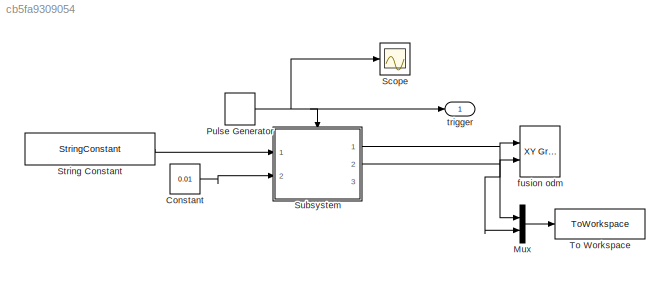
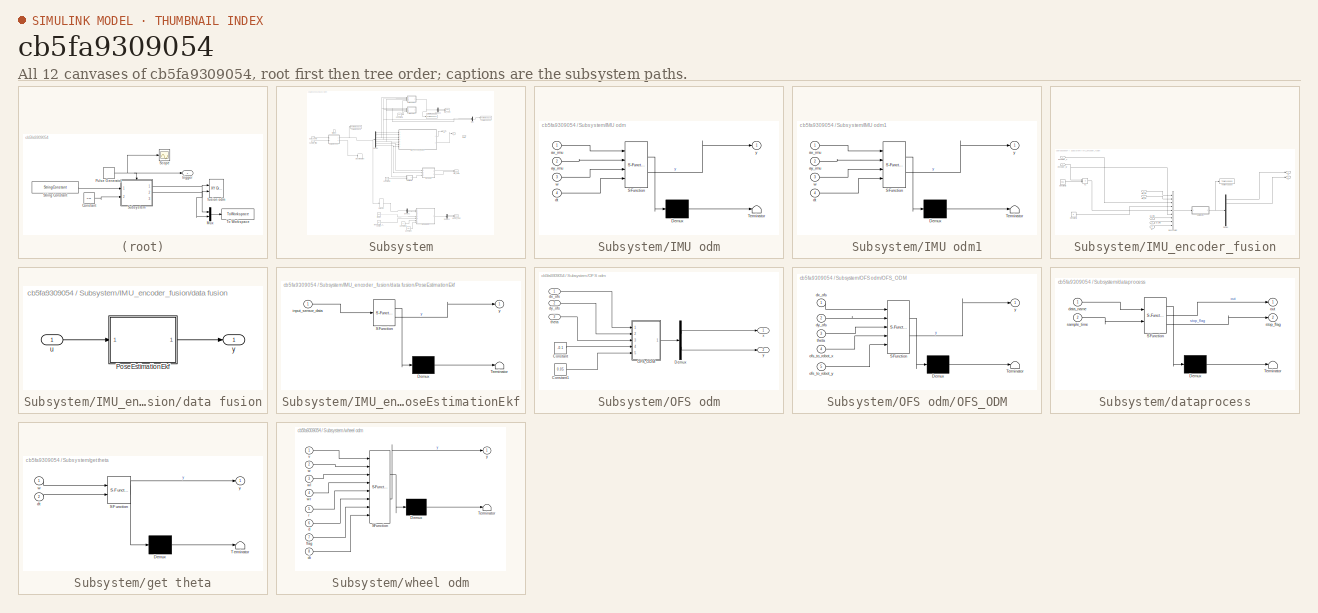
[diagram: thumbnail index - all 12 canvases of the model, root first then tree order]
MODEL slx_cb5fa9309054
KIND model
CONFIG AbsTol = auto
CONFIG EnableMultiTasking = off
CONFIG FixedStep = auto
CONFIG MaxStep = auto
CONFIG MinStep = auto
CONFIG RelTol = 1e-3
CONFIG SampleTimeConstraint = Unconstrained
CONFIG SolverName = VariableStepAuto
CONFIG StartTime = 0.0
CONFIG StopTime = 20.0
WORKSPACE source: mxarray member
WORKSPACE sample_time = 0.01
BLOCK [Constant] Constant
  Value = 0.01
BLOCK [Mux] Mux
  DisplayOption = bar
  Inputs = 2
  Ports = [2, 1]
BLOCK [DiscretePulseGenerator] Pulse Generator
  Period = 0.001
  Ports = [0, 1]
  PulseType = Time based
  PulseWidth = 50
BLOCK [Scope] Scope
  Floating = off
  NumInputPorts = 1
  Ports = [1]
  ScopeSpecificationString = Simulink.scopes.TimeScopeBlockCfg('CurrentConfiguration', extmgr.ConfigurationSet(extmgr.Configuration('Core','General UI',true),extmgr.Configuration('Core','Source UI',true),extmgr.Configuration('Sources','WiredSimulink',true),extmgr.Configuration('Visuals','Time Domain',true,'SerializedDisplays',{struct('MinYLimReal','0.0023','MaxYLimReal','0.00326','YLabelReal','','MinYLimMag','0.0023','MaxYLim...<+1379ch>
BLOCK [StringConstant] String Constant
  String = "debug_output_2023-09-26_07:46:42.dat"
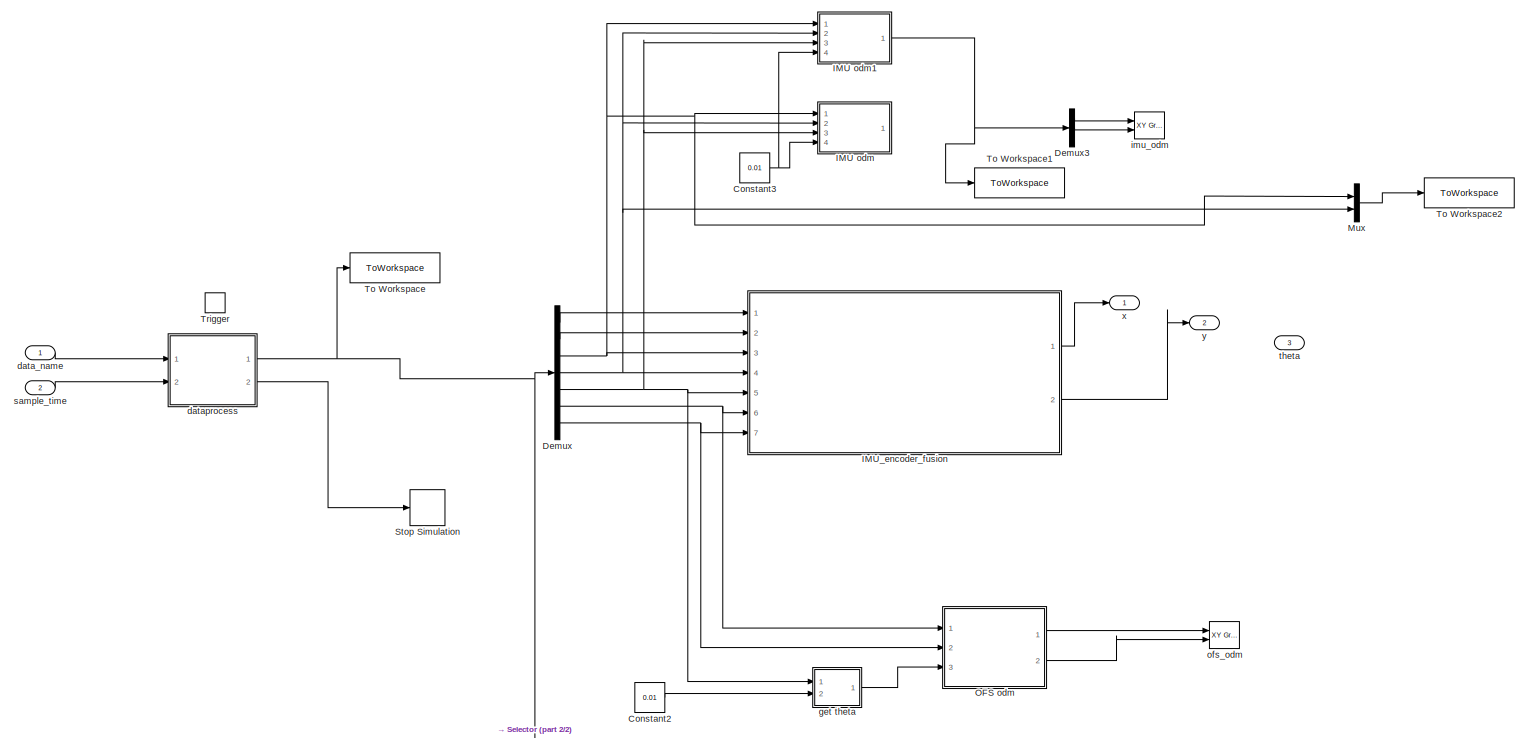
[diagram: Subsystem - part 1/2, full width, middle band]
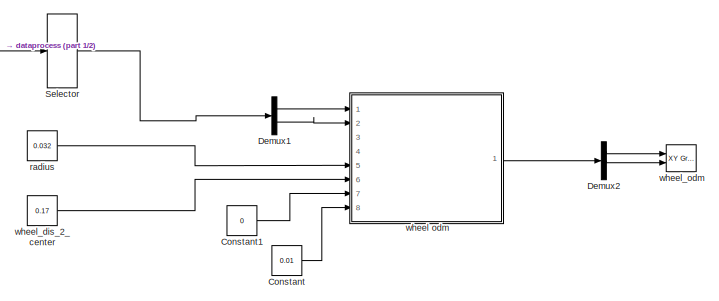
[diagram: Subsystem - part 2/2, bottom center region]
BLOCK [SubSystem] Subsystem
  Ports = [2, 3, 0, 1]
  RequestExecContextInheritance = off
BLOCK [Constant] Subsystem/Constant
  Value = 0.01
BLOCK [Constant] Subsystem/Constant1
  Value = 0
BLOCK [Constant] Subsystem/Constant2
  Value = 0.01
BLOCK [Constant] Subsystem/Constant3
  Value = 0.01
BLOCK [Demux] Subsystem/Demux
  Outputs = 7
  Ports = [1, 7]
BLOCK [Demux] Subsystem/Demux1
  Outputs = 2
  Ports = [1, 2]
BLOCK [Demux] Subsystem/Demux2
  Outputs = 3
  Ports = [1, 3]
BLOCK [Demux] Subsystem/Demux3
  Outputs = 3
  Ports = [1, 3]
BLOCK [SubSystem] Subsystem/IMU odm
  ErrorFcn = Stateflow.Translate.translate
  PermitHierarchicalResolution = ExplicitOnly
  Ports = [4, 1]
  RequestExecContextInheritance = off
  SFBlockType = MATLAB Function
  TreatAsAtomicUnit = on
BLOCK [Demux] Subsystem/IMU odm/ Demux 
  Outputs = 1
  Ports = [1, 1]
BLOCK [S-Function] Subsystem/IMU odm/ SFunction 
  EnableBusSupport = on
  FunctionName = sf_sfun
  PortCounts = [4 2]
  Ports = [4, 2]
  SFcnIsStateOwnerBlock = off
  SFunctionDeploymentMode = off
  Tag = Stateflow S-Function 5
BLOCK [Terminator] Subsystem/IMU odm/ Terminator 
BLOCK [Inport] Subsystem/IMU odm/ax_imu
BLOCK [Inport] Subsystem/IMU odm/ay_imu
  Port = 2
BLOCK [Inport] Subsystem/IMU odm/dt
  Port = 4
BLOCK [Inport] Subsystem/IMU odm/w
  Port = 3
BLOCK [Outport] Subsystem/IMU odm/y
BLOCK [SubSystem] Subsystem/IMU odm1
  ErrorFcn = Stateflow.Translate.translate
  PermitHierarchicalResolution = ExplicitOnly
  Ports = [4, 1]
  RequestExecContextInheritance = off
  SFBlockType = MATLAB Function
  TreatAsAtomicUnit = on
BLOCK [Demux] Subsystem/IMU odm1/ Demux 
  Outputs = 1
  Ports = [1, 1]
BLOCK [S-Function] Subsystem/IMU odm1/ SFunction 
  EnableBusSupport = on
  FunctionName = sf_sfun
  PortCounts = [4 2]
  Ports = [4, 2]
  SFcnIsStateOwnerBlock = off
  SFunctionDeploymentMode = off
  Tag = Stateflow S-Function 7
BLOCK [Terminator] Subsystem/IMU odm1/ Terminator 
BLOCK [Inport] Subsystem/IMU odm1/ax_imu
BLOCK [Inport] Subsystem/IMU odm1/ay_imu
  Port = 2
BLOCK [Inport] Subsystem/IMU odm1/dt
  Port = 4
BLOCK [Inport] Subsystem/IMU odm1/w
  Port = 3
BLOCK [Outport] Subsystem/IMU odm1/y
BLOCK [SubSystem] Subsystem/IMU_encoder_fusion
  Ports = [7, 2]
  RequestExecContextInheritance = off
BLOCK [BusCreator] Subsystem/IMU_encoder_fusion/Bus Creator
  DisplayOption = bar
  InheritFromInputs = on
  Inputs = 9
  Ports = [9, 1]
BLOCK [Constant] Subsystem/IMU_encoder_fusion/Constant1
  Value = 0
BLOCK [Constant] Subsystem/IMU_encoder_fusion/Constant2
  Value = 0.01
BLOCK [Demux] Subsystem/IMU_encoder_fusion/Demux
  Outputs = 6
  Ports = [1, 6]
BLOCK [ToWorkspace] Subsystem/IMU_encoder_fusion/To Workspace
  FixptAsFi = on
  MaxDataPoints = inf
  Ports = [1]
  SampleTime = -1
  Save2DSignal = 2-D array (concatenate along first dimension)
  VariableName = data_fusion_pos
BLOCK [Inport] Subsystem/IMU_encoder_fusion/ax_imu
  Port = 3
BLOCK [Inport] Subsystem/IMU_encoder_fusion/ay_imu
  Port = 4
BLOCK [SubSystem] Subsystem/IMU_encoder_fusion/data fusion
  Ports = [1, 1]
  RequestExecContextInheritance = off
  TreatAsAtomicUnit = on
BLOCK [SubSystem] Subsystem/IMU_encoder_fusion/data fusion/PoseEstimationEkf
  ErrorFcn = Stateflow.Translate.translate
  PermitHierarchicalResolution = ExplicitOnly
  Ports = [1, 1]
  RequestExecContextInheritance = off
  SFBlockType = MATLAB Function
  TreatAsAtomicUnit = on
BLOCK [Demux] Subsystem/IMU_encoder_fusion/data fusion/PoseEstimationEkf/ Demux 
  Outputs = 1
  Ports = [1, 1]
BLOCK [S-Function] Subsystem/IMU_encoder_fusion/data fusion/PoseEstimationEkf/ SFunction 
  EnableBusSupport = on
  FunctionName = sf_sfun
  PortCounts = [1 2]
  Ports = [1, 2]
  SFcnIsStateOwnerBlock = off
  SFunctionDeploymentMode = off
  Tag = Stateflow S-Function 3
BLOCK [Terminator] Subsystem/IMU_encoder_fusion/data fusion/PoseEstimationEkf/ Terminator 
BLOCK [Inport] Subsystem/IMU_encoder_fusion/data fusion/PoseEstimationEkf/input_sensor_data
BLOCK [Outport] Subsystem/IMU_encoder_fusion/data fusion/PoseEstimationEkf/y
BLOCK [Inport] Subsystem/IMU_encoder_fusion/data fusion/u
BLOCK [Outport] Subsystem/IMU_encoder_fusion/data fusion/y
BLOCK [Inport] Subsystem/IMU_encoder_fusion/encoder_v
BLOCK [Inport] Subsystem/IMU_encoder_fusion/encoder_w
  Port = 2
BLOCK [Inport] Subsystem/IMU_encoder_fusion/ofs_dx
  Port = 6
BLOCK [Inport] Subsystem/IMU_encoder_fusion/ofs_dy
  Port = 7
BLOCK [Product] Subsystem/IMU_encoder_fusion/v1
  Ports = [2, 1]
BLOCK [Inport] Subsystem/IMU_encoder_fusion/w
  Port = 5
BLOCK [Outport] Subsystem/IMU_encoder_fusion/x
BLOCK [Outport] Subsystem/IMU_encoder_fusion/y
  Port = 2
BLOCK [Mux] Subsystem/Mux
  DisplayOption = bar
  Inputs = 2
  Ports = [2, 1]
BLOCK [SubSystem] Subsystem/OFS odm
  Ports = [3, 2]
  RequestExecContextInheritance = off
BLOCK [Constant] Subsystem/OFS odm/Constant
  Value = -0.1
BLOCK [Constant] Subsystem/OFS odm/Constant1
  Value = 0.05
BLOCK [Demux] Subsystem/OFS odm/Demux
  Outputs = 2
  Ports = [1, 2]
BLOCK [SubSystem] Subsystem/OFS odm/OFS_ODM
  ErrorFcn = Stateflow.Translate.translate
  PermitHierarchicalResolution = ExplicitOnly
  Ports = [5, 1]
  RequestExecContextInheritance = off
  SFBlockType = MATLAB Function
  TreatAsAtomicUnit = on
BLOCK [Demux] Subsystem/OFS odm/OFS_ODM/ Demux 
  Outputs = 1
  Ports = [1, 1]
BLOCK [S-Function] Subsystem/OFS odm/OFS_ODM/ SFunction 
  EnableBusSupport = on
  FunctionName = sf_sfun
  PortCounts = [5 2]
  Ports = [5, 2]
  SFcnIsStateOwnerBlock = off
  SFunctionDeploymentMode = off
  Tag = Stateflow S-Function 6
BLOCK [Terminator] Subsystem/OFS odm/OFS_ODM/ Terminator 
BLOCK [Inport] Subsystem/OFS odm/OFS_ODM/dx_ofs
BLOCK [Inport] Subsystem/OFS odm/OFS_ODM/dy_ofs
  Port = 2
BLOCK [Inport] Subsystem/OFS odm/OFS_ODM/ofs_to_robot_x
  Port = 4
BLOCK [Inport] Subsystem/OFS odm/OFS_ODM/ofs_to_robot_y
  Port = 5
BLOCK [Inport] Subsystem/OFS odm/OFS_ODM/theta
  Port = 3
BLOCK [Outport] Subsystem/OFS odm/OFS_ODM/y
BLOCK [Inport] Subsystem/OFS odm/dx_ofs
BLOCK [Inport] Subsystem/OFS odm/dy_ofs
  Port = 2
BLOCK [Inport] Subsystem/OFS odm/theta
  Port = 3
BLOCK [Outport] Subsystem/OFS odm/x
BLOCK [Outport] Subsystem/OFS odm/y
  Port = 2
BLOCK [Selector] Subsystem/Selector
  IndexOptions = Index vector (dialog)
  Indices = [1 2]
  InputPortWidth = 7
  OutputSizes = 1
  Ports = [1, 1]
BLOCK [Stop] Subsystem/Stop Simulation
BLOCK [ToWorkspace] Subsystem/To Workspace
  FixptAsFi = on
  MaxDataPoints = inf
  Ports = [1]
  SampleTime = -1
  Save2DSignal = 2-D array (concatenate along first dimension)
  VariableName = sensordata
BLOCK [ToWorkspace] Subsystem/To Workspace1
  FixptAsFi = on
  MaxDataPoints = inf
  Ports = [1]
  SampleTime = -1
  Save2DSignal = 2-D array (concatenate along first dimension)
  VariableName = imu_odm
BLOCK [ToWorkspace] Subsystem/To Workspace2
  FixptAsFi = on
  MaxDataPoints = inf
  Ports = [1]
  SampleTime = -1
  Save2DSignal = 2-D array (concatenate along first dimension)
  VariableName = w
BLOCK [TriggerPort] Subsystem/Trigger
  PortDimensions = 1
  Ports = []
  StatesWhenEnabling = held
  VariantControl = Variant
BLOCK [Inport] Subsystem/data_name
BLOCK [SubSystem] Subsystem/dataprocess
  ErrorFcn = Stateflow.Translate.translate
  PermitHierarchicalResolution = ExplicitOnly
  Ports = [2, 2]
  RequestExecContextInheritance = off
  SFBlockType = MATLAB Function
  TreatAsAtomicUnit = on
BLOCK [Demux] Subsystem/dataprocess/ Demux 
  Outputs = 1
  Ports = [1, 1]
BLOCK [S-Function] Subsystem/dataprocess/ SFunction 
  EnableBusSupport = on
  FunctionName = sf_sfun
  PortCounts = [2 3]
  Ports = [2, 3]
  SFcnIsStateOwnerBlock = off
  SFunctionDeploymentMode = off
  Tag = Stateflow S-Function 2
BLOCK [Terminator] Subsystem/dataprocess/ Terminator 
BLOCK [Inport] Subsystem/dataprocess/data_name
BLOCK [Outport] Subsystem/dataprocess/out
BLOCK [Inport] Subsystem/dataprocess/sample_time
  Port = 2
BLOCK [Outport] Subsystem/dataprocess/stop_flag
  Port = 2
BLOCK [SubSystem] Subsystem/get theta
  ErrorFcn = Stateflow.Translate.translate
  PermitHierarchicalResolution = ExplicitOnly
  Ports = [2, 1]
  RequestExecContextInheritance = off
  SFBlockType = MATLAB Function
  TreatAsAtomicUnit = on
BLOCK [Demux] Subsystem/get theta/ Demux 
  Outputs = 1
  Ports = [1, 1]
BLOCK [S-Function] Subsystem/get theta/ SFunction 
  EnableBusSupport = on
  FunctionName = sf_sfun
  PortCounts = [2 2]
  Ports = [2, 2]
  SFcnIsStateOwnerBlock = off
  SFunctionDeploymentMode = off
  Tag = Stateflow S-Function 4
BLOCK [Terminator] Subsystem/get theta/ Terminator 
BLOCK [Inport] Subsystem/get theta/dt
  Port = 2
BLOCK [Inport] Subsystem/get theta/w
BLOCK [Outport] Subsystem/get theta/y
BLOCK [Reference] Subsystem/imu_odm  REF=simulink/Sinks/XY Graph
  Ports = [2]
  SourceBlock = simulink/Sinks/XY Graph
  SourceProductBaseCode = SL
  SourceType = XY scope.
BLOCK [Reference] Subsystem/ofs_odm  REF=simulink/Sinks/XY Graph
  Ports = [2]
  SourceBlock = simulink/Sinks/XY Graph
  SourceProductBaseCode = SL
  SourceType = XY scope.
BLOCK [Constant] Subsystem/radius
  Value = 0.032
BLOCK [Inport] Subsystem/sample_time
  Port = 2
BLOCK [Outport] Subsystem/theta
  Port = 3
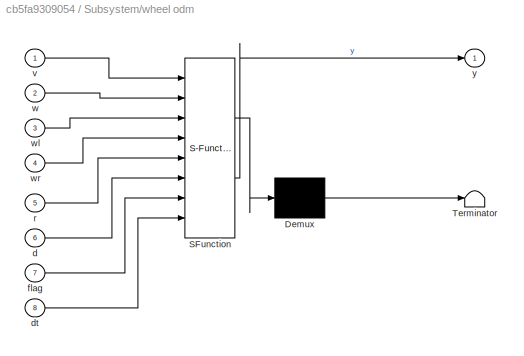
BLOCK [SubSystem] Subsystem/wheel odm
  ErrorFcn = Stateflow.Translate.translate
  PermitHierarchicalResolution = ExplicitOnly
  Ports = [8, 1]
  RequestExecContextInheritance = off
  SFBlockType = MATLAB Function
  TreatAsAtomicUnit = on
BLOCK [Demux] Subsystem/wheel odm/ Demux 
  Outputs = 1
  Ports = [1, 1]
BLOCK [S-Function] Subsystem/wheel odm/ SFunction 
  EnableBusSupport = on
  FunctionName = sf_sfun
  PortCounts = [8 2]
  Ports = [8, 2]
  SFcnIsStateOwnerBlock = off
  SFunctionDeploymentMode = off
  Tag = Stateflow S-Function 1
BLOCK [Terminator] Subsystem/wheel odm/ Terminator 
BLOCK [Inport] Subsystem/wheel odm/d
  Port = 6
BLOCK [Inport] Subsystem/wheel odm/dt
  Port = 8
BLOCK [Inport] Subsystem/wheel odm/flag
  Port = 7
BLOCK [Inport] Subsystem/wheel odm/r
  Port = 5
BLOCK [Inport] Subsystem/wheel odm/v
BLOCK [Inport] Subsystem/wheel odm/w
  Port = 2
BLOCK [Inport] Subsystem/wheel odm/wl
  Port = 3
BLOCK [Inport] Subsystem/wheel odm/wr
  Port = 4
BLOCK [Outport] Subsystem/wheel odm/y
BLOCK [Constant] Subsystem/wheel_dis_2_center
  Value = 0.17
BLOCK [Reference] Subsystem/wheel_odm  REF=simulink/Sinks/XY Graph
  Ports = [2]
  SourceBlock = simulink/Sinks/XY Graph
  SourceProductBaseCode = SL
  SourceType = XY scope.
BLOCK [Outport] Subsystem/x
BLOCK [Outport] Subsystem/y
  Port = 2
BLOCK [ToWorkspace] To Workspace
  FixptAsFi = on
  MaxDataPoints = inf
  Ports = [1]
  SampleTime = -1
  Save2DSignal = 2-D array (concatenate along first dimension)
  VariableName = pose
BLOCK [Reference] fusion odm  REF=simulink/Sinks/XY Graph
  Ports = [2]
  SourceBlock = simulink/Sinks/XY Graph
  SourceProductBaseCode = SL
  SourceType = XY scope.
BLOCK [Outport] trigger
LINE Constant:1 -> Subsystem:2
LINE Mux:1 -> To Workspace:1
NET Pulse Generator:1 -> Scope:1, Subsystem:trigger, trigger:1
LINE String Constant:1 -> Subsystem:1
LINE Subsystem/Constant1:1 -> Subsystem/wheel odm:7
LINE Subsystem/Constant2:1 -> Subsystem/get theta:2
NET Subsystem/Constant3:1 -> Subsystem/IMU odm1:4, Subsystem/IMU odm:4
LINE Subsystem/Constant:1 -> Subsystem/wheel odm:8
LINE Subsystem/Demux1:1 -> Subsystem/wheel odm:1
LINE Subsystem/Demux1:2 -> Subsystem/wheel odm:2
LINE Subsystem/Demux2:1 -> Subsystem/wheel_odm:1
LINE Subsystem/Demux2:2 -> Subsystem/wheel_odm:2
LINE Subsystem/Demux3:1 -> Subsystem/imu_odm:1
LINE Subsystem/Demux3:2 -> Subsystem/imu_odm:2
LINE Subsystem/Demux:1 -> Subsystem/IMU_encoder_fusion:1
LINE Subsystem/Demux:2 -> Subsystem/IMU_encoder_fusion:2
NET Subsystem/Demux:3 -> Subsystem/IMU odm1:1, Subsystem/IMU odm:1, Subsystem/IMU_encoder_fusion:3, Subsystem/Mux:1
NET Subsystem/Demux:4 -> Subsystem/IMU odm1:2, Subsystem/IMU odm:2, Subsystem/IMU_encoder_fusion:4, Subsystem/Mux:2
NET Subsystem/Demux:5 -> Subsystem/IMU odm1:3, Subsystem/IMU odm:3, Subsystem/IMU_encoder_fusion:5, Subsystem/get theta:1
NET Subsystem/Demux:6 -> Subsystem/IMU_encoder_fusion:6, Subsystem/OFS odm:1
NET Subsystem/Demux:7 -> Subsystem/IMU_encoder_fusion:7, Subsystem/OFS odm:2
NET Subsystem/IMU odm1:1 -> Subsystem/Demux3:1, Subsystem/To Workspace1:1
LINE Subsystem/IMU_encoder_fusion/Bus Creator:1 -> Subsystem/IMU_encoder_fusion/data fusion:1
LINE Subsystem/IMU_encoder_fusion/Constant1:1 -> Subsystem/IMU_encoder_fusion/Bus Creator:4
LINE Subsystem/IMU_encoder_fusion/Constant2:1 -> Subsystem/IMU_encoder_fusion/v1:2
LINE Subsystem/IMU_encoder_fusion/Demux:1 -> Subsystem/IMU_encoder_fusion/x:1
LINE Subsystem/IMU_encoder_fusion/Demux:2 -> Subsystem/IMU_encoder_fusion/y:1
LINE Subsystem/IMU_encoder_fusion/ax_imu:1 -> Subsystem/IMU_encoder_fusion/Bus Creator:7
LINE Subsystem/IMU_encoder_fusion/ay_imu:1 -> Subsystem/IMU_encoder_fusion/Bus Creator:8
LINE Subsystem/IMU_encoder_fusion/data fusion/PoseEstimationEkf:1 -> Subsystem/IMU_encoder_fusion/data fusion/y:1
LINE Subsystem/IMU_encoder_fusion/data fusion/u:1 -> Subsystem/IMU_encoder_fusion/data fusion/PoseEstimationEkf:1
NET Subsystem/IMU_encoder_fusion/data fusion:1 -> Subsystem/IMU_encoder_fusion/Demux:1, Subsystem/IMU_encoder_fusion/To Workspace:1
LINE Subsystem/IMU_encoder_fusion/encoder_v:1 -> Subsystem/IMU_encoder_fusion/Bus Creator:3
NET Subsystem/IMU_encoder_fusion/encoder_w:1 -> Subsystem/IMU_encoder_fusion/Bus Creator:6, Subsystem/IMU_encoder_fusion/v1:1
LINE Subsystem/IMU_encoder_fusion/ofs_dx:1 -> Subsystem/IMU_encoder_fusion/Bus Creator:1
LINE Subsystem/IMU_encoder_fusion/ofs_dy:1 -> Subsystem/IMU_encoder_fusion/Bus Creator:2
LINE Subsystem/IMU_encoder_fusion/v1:1 -> Subsystem/IMU_encoder_fusion/Bus Creator:5
LINE Subsystem/IMU_encoder_fusion/w:1 -> Subsystem/IMU_encoder_fusion/Bus Creator:9
LINE Subsystem/IMU_encoder_fusion:1 -> Subsystem/x:1
LINE Subsystem/IMU_encoder_fusion:2 -> Subsystem/y:1
LINE Subsystem/Mux:1 -> Subsystem/To Workspace2:1
LINE Subsystem/OFS odm/Constant1:1 -> Subsystem/OFS odm/OFS_ODM:5
LINE Subsystem/OFS odm/Constant:1 -> Subsystem/OFS odm/OFS_ODM:4
LINE Subsystem/OFS odm/Demux:1 -> Subsystem/OFS odm/x:1
LINE Subsystem/OFS odm/Demux:2 -> Subsystem/OFS odm/y:1
LINE Subsystem/OFS odm/OFS_ODM:1 -> Subsystem/OFS odm/Demux:1
LINE Subsystem/OFS odm/dx_ofs:1 -> Subsystem/OFS odm/OFS_ODM:1
LINE Subsystem/OFS odm/dy_ofs:1 -> Subsystem/OFS odm/OFS_ODM:2
LINE Subsystem/OFS odm/theta:1 -> Subsystem/OFS odm/OFS_ODM:3
LINE Subsystem/OFS odm:1 -> Subsystem/ofs_odm:1
LINE Subsystem/OFS odm:2 -> Subsystem/ofs_odm:2
LINE Subsystem/Selector:1 -> Subsystem/Demux1:1
LINE Subsystem/data_name:1 -> Subsystem/dataprocess:1
NET Subsystem/dataprocess:1 -> Subsystem/Demux:1, Subsystem/Selector:1, Subsystem/To Workspace:1
LINE Subsystem/dataprocess:2 -> Subsystem/Stop Simulation:1
LINE Subsystem/get theta:1 -> Subsystem/OFS odm:3
LINE Subsystem/radius:1 -> Subsystem/wheel odm:5
LINE Subsystem/sample_time:1 -> Subsystem/dataprocess:2
LINE Subsystem/wheel odm:1 -> Subsystem/Demux2:1
LINE Subsystem/wheel_dis_2_center:1 -> Subsystem/wheel odm:6
NET Subsystem:1 -> Mux:1, fusion odm:1
NET Subsystem:2 -> Mux:2, fusion odm:2
note: NET lines group one-source signal fan-out (src -> all destinations, sorted); 1:1 wires keep LINE
CHART Subsystem/wheel odm states=1 transitions=1
  STATE_LABEL 'eML_blk_kernel()'
  STATE_LABEL 'SCRIPT:\nfunction y = wheelodm( v,w,wl,wr,r,d,flag,dt)\npersistent pos last_pos;\nif isempty(pos)\n   pos=zeros(3,1);%x,y,theta \n   last_pos=pos;\nend\nif flag==0\n   %use v,w \n   vx=v*cos(pos(3));\n   vy=v*sin(pos(3));\n   dx=vx*dt;\n   dy=vy*dt;\n   dtheta=w*dt;\n   pos=pos+[dx;dy;dtheta];\n    \nelse\n    %use wl,wr\n    pos=zeros(3,1);%x,y,theta\n    \nend\ny = pos;\n'
CHART Subsystem/dataprocess states=1 transitions=1
  STATE_LABEL 'eML_blk_kernel()'
  STATE_LABEL 'SCRIPT:\nfunction [out,stop_flag]= realdata_read(data_name,sample_time)\ncoder.extrinsic(\'realdata_read_callback\');\nout=[0,0,0,0,0,0,0];\nstop_flag=0;\nout=realdata_read_callback(data_name,sample_time);\nif sum(out)==-7\n    stop_flag=1;\nend\n% persistent fid;\n% filepath="<userpath>/work/other/TFwork/code/mat/car_simulation/";\n% if isempty(fid)\n%     fid=fopen(filepath+data_name,\'r\');\n% end\n% starttim=0;...<+927ch>'
CHART Subsystem/IMU_encoder_fusion/data fusion/PoseEstimationEkf states=1 transitions=1
  STATE_LABEL 'eML_blk_kernel()'
  STATE_LABEL 'SCRIPT:\nfunction y = PoseEstimationEkf(input_sensor_data)\npersistent state_variable_current state_variable_last P Q counter vx_imu vy_imu vx_imu_last vy_imu_last;\nif isempty(state_variable_current)\n        state_variable_current=zeros(6,1);%[xt,yt,theta_t,vxt,vyt,wt,axt,ayt]\n        state_variable_last=zeros(6,1);\n        Q=diag([0.1, 0.1, 0.1,0.1, 0.1, 0.1]);\n        P=Q;\n        counter=0;\n     ...<+3608ch>'
CHART Subsystem/get theta states=1 transitions=1
  STATE_LABEL 'eML_blk_kernel()'
  STATE_LABEL 'SCRIPT:\nfunction y = fcn(w,dt)\npersistent theta last_w;\nif isempty(last_w)\n    theta=0;\n    last_w=0;\nend\ndtheta=(w+last_w)*0.5*dt;\ntheta=theta+dtheta;\nlast_w=w;\ny = theta;\n'
CHART Subsystem/IMU odm states=1 transitions=1
  STATE_LABEL 'eML_blk_kernel()'
  STATE_LABEL 'SCRIPT:\nfunction y = fcn(ax_imu,ay_imu,w,dt)\npersistent pos vx_last vy_last ax_last ay_last w_last;\nif isempty(pos)\n    pos=zeros(3,1);\n    vx_last=0;\n    vy_last=0;\n    ax_last=0;\n    ay_last=0;\n    w_last=0;\nend\n\ndtheta=(w+w_last)*0.5*dt;\nax=ax_imu*cos(pos(3)+dtheta)-ay_imu*sin(pos(3)+dtheta);\nddx=vx_last*dt+(ax+ax_last)*dt^2/4;\n\nay=ax_imu*sin(pos(3)+dtheta)+ay_imu*cos(pos(3)+dtheta);\nddy=vy_las...<+362ch>'
CHART Subsystem/OFS odm/OFS_ODM states=1 transitions=1
  STATE_LABEL 'eML_blk_kernel()'
  STATE_LABEL 'SCRIPT:\nfunction y = OfsOdm(dx_ofs,dy_ofs,theta,ofs_to_robot_x,ofs_to_robot_y)\npersistent  current_robot_xy last_robot_xy  last_robot_theta;\nif isempty(last_robot_xy)\n   last_robot_xy=[0;0];\n   last_robot_theta=0;\nend\n\ncurrent_robot_theta=theta;\ncurrent_ofs_pose=[ofs_to_robot_x;ofs_to_robot_y];\n\n\nrotation_matrix_last_robot_pose=[[cos(last_robot_theta),-sin(last_robot_theta)];\n    [sin(last_robot_t...<+435ch>'
CHART Subsystem/IMU odm1 states=1 transitions=1
  STATE_LABEL 'eML_blk_kernel()'
  STATE_LABEL 'SCRIPT:\nfunction y = fcn(ax_imu,ay_imu,w,dt)\npersistent pos vx_last vy_last  w_last vx_imu vy_imu vx_imu_last vy_imu_last;\nif isempty(pos)\n    pos=zeros(3,1);\n    vx_last=0;\n    vy_last=0;\n\n    w_last=0;\n    vx_imu=0;\n    vy_imu=0;\n    vx_imu_last=0;\n    vy_imu_last=0;\nend\n\ndtheta=(w+w_last)*0.5*dt;\ntheta=pos(3)+dtheta;\n\nvx_imu=vx_imu+ax_imu*dt;\nvy_imu=vy_imu+ay_imu*dt;\n\n\nddx_imu=(vx_imu+vx_imu_la...<+377ch>'
CHART  states=0 transitions=0
CHART  states=0 transitions=0
CHART  states=0 transitions=0
CHART  states=0 transitions=0
CHART  states=0 transitions=0
CHART  states=0 transitions=0
CHART  states=0 transitions=0
